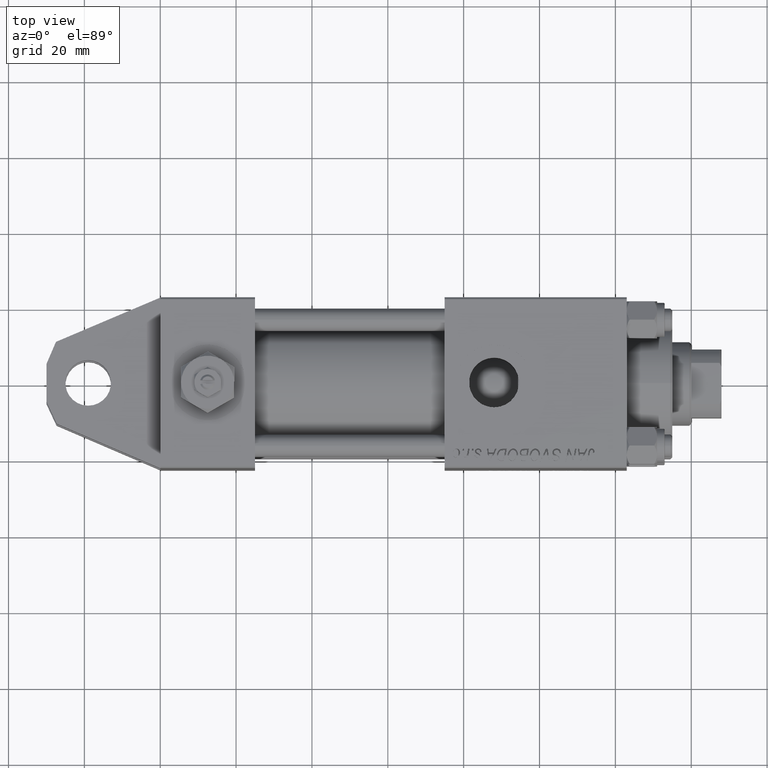
[diagram: clean part render]
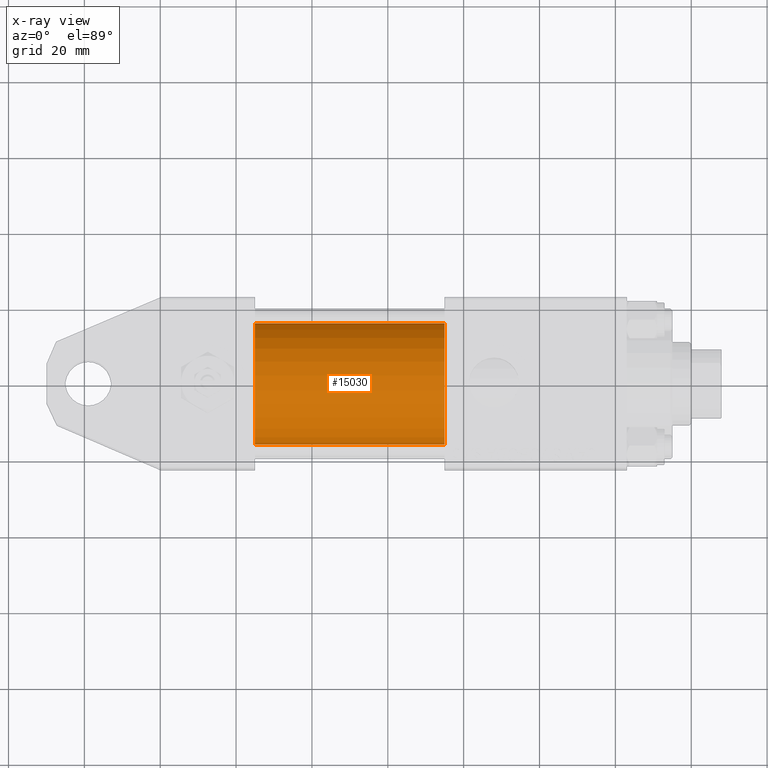
[diagram: x-ray — body ghosted, one internal face saturated and labeled with its STEP entity id]
A machine part, top view, then the same camera in x-ray: the body is ghosted and one INTERNAL B-rep face — a face not visible from any outside direction — is saturated and labeled: STEP entity #15030.
In plain terms, the highlighted cylindrical surface (partial cylindrical patch) has radius 16 mm, axis along (-1, -0, 0).
Its self-contained STEP definition (entity closure, byte-faithful):
#1826 = CYLINDRICAL_SURFACE ( 'NONE', #26973, 16.00000000000000000 ) ;
#2130 = ORIENTED_EDGE ( 'NONE', *, *, #9865, .F. ) ;
#5315 = EDGE_CURVE ( 'NONE', #24057, #49440, #17536, .T. ) ;
#5765 = CARTESIAN_POINT ( 'NONE',  ( 75.00000000000001421, -3.469446951953614189E-15, 0.000000000000000000 ) ) ;
#6399 = VERTEX_POINT ( 'NONE', #23029 ) ;
#9427 = DIRECTION ( 'NONE',  ( -1.000000000000000000, -0.000000000000000000, -0.000000000000000000 ) ) ;
#9865 = EDGE_CURVE ( 'NONE', #15821, #49440, #45141, .T. ) ;
#11289 = ORIENTED_EDGE ( 'NONE', *, *, #11991, .T. ) ;
#11991 = EDGE_CURVE ( 'NONE', #6399, #24057, #31031, .T. ) ;
#14160 = DIRECTION ( 'NONE',  ( 1.000000000000000000, 0.000000000000000000, 0.000000000000000000 ) ) ;
#14294 = AXIS2_PLACEMENT_3D ( 'NONE', #46284, #14160, #31123 ) ;
#15030 = ADVANCED_FACE ( 'NONE', ( #17795 ), #1826, .F. ) ;
#15821 = VERTEX_POINT ( 'NONE', #32457 ) ;
#16934 = DIRECTION ( 'NONE',  ( -1.000000000000000000, -0.000000000000000000, -0.000000000000000000 ) ) ;
#17275 = DIRECTION ( 'NONE',  ( -1.000000000000000000, -0.000000000000000000, -0.000000000000000000 ) ) ;
#17536 = LINE ( 'NONE', #32442, #45823 ) ;
#17795 = FACE_OUTER_BOUND ( 'NONE', #20445, .T. ) ;
#20445 = EDGE_LOOP ( 'NONE', ( #11289, #35779, #2130, #20554 ) ) ;
#20554 = ORIENTED_EDGE ( 'NONE', *, *, #40566, .F. ) ;
#22466 = DIRECTION ( 'NONE',  ( 1.000000000000000000, 0.000000000000000000, 0.000000000000000000 ) ) ;
#23029 = CARTESIAN_POINT ( 'NONE',  ( 75.00000000000001421, -3.469446951953614189E-15, 16.00000000000000000 ) ) ;
#24057 = VERTEX_POINT ( 'NONE', #24265 ) ;
#24265 = CARTESIAN_POINT ( 'NONE',  ( 75.00000000000001421, -1.510012073317849255E-15, -16.00000000000000000 ) ) ;
#25442 = VECTOR ( 'NONE', #16934, 1000.000000000000000 ) ;
#26973 = AXIS2_PLACEMENT_3D ( 'NONE', #5765, #17275, #41310 ) ;
#28686 = CARTESIAN_POINT ( 'NONE',  ( 75.00000000000001421, -3.469446951953614189E-15, 16.00000000000000000 ) ) ;
#30565 = CARTESIAN_POINT ( 'NONE',  ( 75.00000000000001421, -3.469446951953614189E-15, 0.000000000000000000 ) ) ;
#31031 = CIRCLE ( 'NONE', #46054, 16.00000000000000000 ) ;
#31123 = DIRECTION ( 'NONE',  ( 0.000000000000000000, 0.000000000000000000, -1.000000000000000000 ) ) ;
#32442 = CARTESIAN_POINT ( 'NONE',  ( 75.00000000000001421, -1.510012073317849255E-15, -16.00000000000000000 ) ) ;
#32457 = CARTESIAN_POINT ( 'NONE',  ( 25.00000000000000000, -3.469446951953614189E-15, 16.00000000000000000 ) ) ;
#34221 = DIRECTION ( 'NONE',  ( 0.000000000000000000, 0.000000000000000000, -1.000000000000000000 ) ) ;
#35779 = ORIENTED_EDGE ( 'NONE', *, *, #5315, .T. ) ;
#40566 = EDGE_CURVE ( 'NONE', #6399, #15821, #48276, .T. ) ;
#41310 = DIRECTION ( 'NONE',  ( 0.000000000000000000, 0.000000000000000000, 1.000000000000000000 ) ) ;
#45141 = CIRCLE ( 'NONE', #14294, 16.00000000000000000 ) ;
#45823 = VECTOR ( 'NONE', #9427, 1000.000000000000000 ) ;
#46054 = AXIS2_PLACEMENT_3D ( 'NONE', #30565, #22466, #34221 ) ;
#46284 = CARTESIAN_POINT ( 'NONE',  ( 25.00000000000000000, -3.469446951953614189E-15, 0.000000000000000000 ) ) ;
#48276 = LINE ( 'NONE', #28686, #25442 ) ;
#48985 = CARTESIAN_POINT ( 'NONE',  ( 25.00000000000000000, -1.510012073317849255E-15, -16.00000000000000000 ) ) ;
#49440 = VERTEX_POINT ( 'NONE', #48985 ) ;